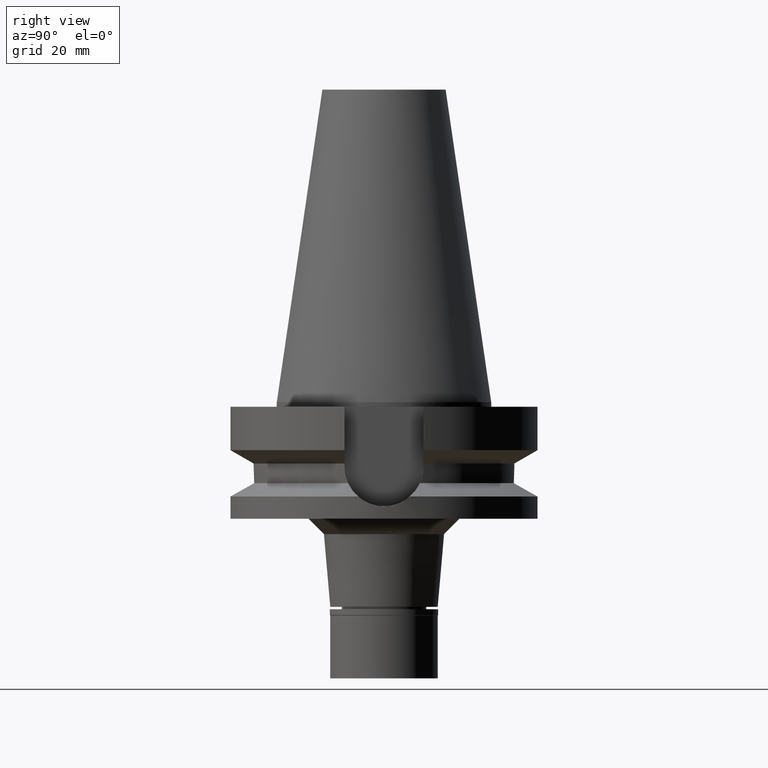
[diagram: clean part render]
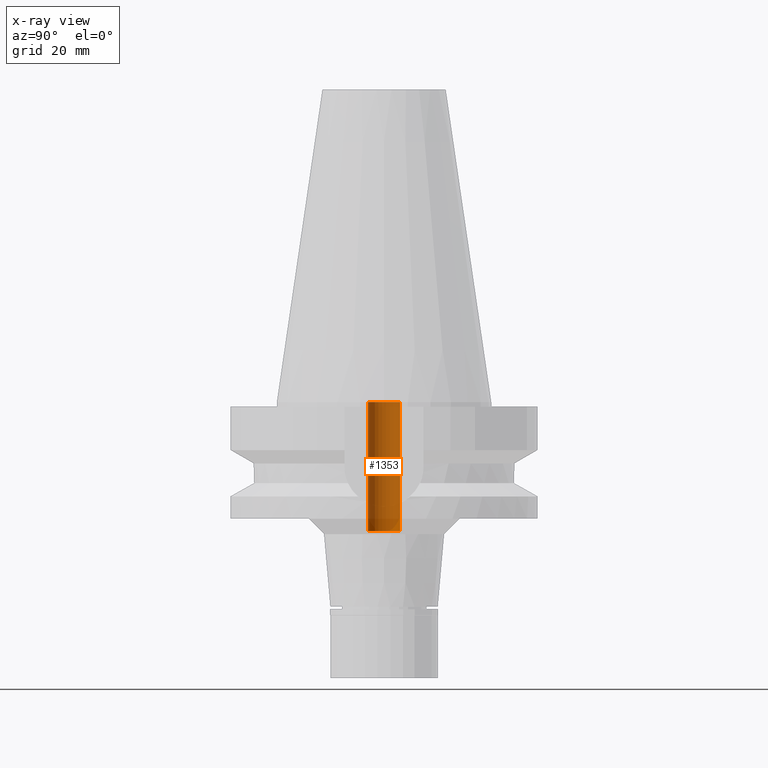
[diagram: x-ray — body ghosted, one internal face saturated and labeled with its STEP entity id]
A machine part, right view, then the same camera in x-ray: the body is ghosted and one INTERNAL B-rep face — a face not visible from any outside direction — is saturated and labeled: STEP entity #1353.
In plain terms, the highlighted cylindrical surface (edge-blend (fillet) strip) has radius 5.2 mm, axis along (0, 0, -1).
Its self-contained STEP definition (entity closure, byte-faithful):
#96 = DIRECTION ( 'NONE',  ( 0.0000000000000000000, 0.0000000000000000000, 1.000000000000000000 ) ) ;
#127 = CARTESIAN_POINT ( 'NONE',  ( 0.0000000000000000000, 2.584678301939999885E-14, 111.0550000000000068 ) ) ;
#143 = FACE_OUTER_BOUND ( 'NONE', #350, .T. ) ;
#170 = ORIENTED_EDGE ( 'NONE', *, *, #2882, .F. ) ;
#220 = VERTEX_POINT ( 'NONE', #1616 ) ;
#324 = CIRCLE ( 'NONE', #1564, 5.200000000000000178 ) ;
#350 = EDGE_LOOP ( 'NONE', ( #170, #2531, #2478, #559 ) ) ;
#363 = LINE ( 'NONE', #2044, #2166 ) ;
#555 = VERTEX_POINT ( 'NONE', #2870 ) ;
#559 = ORIENTED_EDGE ( 'NONE', *, *, #1443, .T. ) ;
#631 = EDGE_CURVE ( 'NONE', #555, #2736, #2666, .T. ) ;
#695 = CARTESIAN_POINT ( 'NONE',  ( 0.0000000000000000000, 2.584678301939999885E-14, -42.00000000000000000 ) ) ;
#747 = CARTESIAN_POINT ( 'NONE',  ( 0.0000000000000000000, 2.584678301939999885E-14, -4.263256414560999963E-14 ) ) ;
#781 = CARTESIAN_POINT ( 'NONE',  ( 0.0000000000000000000, 5.200000000000000178, 0.0000000000000000000 ) ) ;
#808 = DIRECTION ( 'NONE',  ( 0.0000000000000000000, 0.0000000000000000000, -1.000000000000000000 ) ) ;
#877 = VECTOR ( 'NONE', #1569, 1000.000000000000000 ) ;
#980 = DIRECTION ( 'NONE',  ( 0.0000000000000000000, 0.0000000000000000000, -1.000000000000000000 ) ) ;
#1193 = AXIS2_PLACEMENT_3D ( 'NONE', #695, #1413, #1854 ) ;
#1351 = EDGE_CURVE ( 'NONE', #555, #220, #3039, .T. ) ;
#1353 = ADVANCED_FACE ( 'NONE', ( #143 ), #3023, .F. ) ;
#1413 = DIRECTION ( 'NONE',  ( 0.0000000000000000000, 0.0000000000000000000, -1.000000000000000000 ) ) ;
#1443 = EDGE_CURVE ( 'NONE', #2736, #3018, #363, .T. ) ;
#1472 = CARTESIAN_POINT ( 'NONE',  ( 0.0000000000000000000, 5.200000000000000178, -42.00000000000000000 ) ) ;
#1564 = AXIS2_PLACEMENT_3D ( 'NONE', #747, #980, #1730 ) ;
#1569 = DIRECTION ( 'NONE',  ( 0.0000000000000000000, 0.0000000000000000000, 1.000000000000000000 ) ) ;
#1616 = CARTESIAN_POINT ( 'NONE',  ( 0.0000000000000000000, -5.200000000000000178, 0.0000000000000000000 ) ) ;
#1730 = DIRECTION ( 'NONE',  ( 0.0000000000000000000, -1.000000000000000000, 0.0000000000000000000 ) ) ;
#1743 = DIRECTION ( 'NONE',  ( 0.0000000000000000000, -1.000000000000000000, 0.0000000000000000000 ) ) ;
#1854 = DIRECTION ( 'NONE',  ( 0.0000000000000000000, -1.000000000000000000, 0.0000000000000000000 ) ) ;
#2044 = CARTESIAN_POINT ( 'NONE',  ( 0.0000000000000000000, 5.200000000000000178, -42.00000000000000000 ) ) ;
#2166 = VECTOR ( 'NONE', #96, 1000.000000000000000 ) ;
#2299 = CARTESIAN_POINT ( 'NONE',  ( 0.0000000000000000000, -5.200000000000000178, -42.00000000000000000 ) ) ;
#2398 = AXIS2_PLACEMENT_3D ( 'NONE', #127, #808, #1743 ) ;
#2478 = ORIENTED_EDGE ( 'NONE', *, *, #631, .T. ) ;
#2531 = ORIENTED_EDGE ( 'NONE', *, *, #1351, .F. ) ;
#2666 = CIRCLE ( 'NONE', #1193, 5.200000000000000178 ) ;
#2736 = VERTEX_POINT ( 'NONE', #1472 ) ;
#2870 = CARTESIAN_POINT ( 'NONE',  ( 0.0000000000000000000, -5.200000000000000178, -42.00000000000000000 ) ) ;
#2882 = EDGE_CURVE ( 'NONE', #220, #3018, #324, .T. ) ;
#3018 = VERTEX_POINT ( 'NONE', #781 ) ;
#3023 = CYLINDRICAL_SURFACE ( 'NONE', #2398, 5.200000000000000178 ) ;
#3039 = LINE ( 'NONE', #2299, #877 ) ;